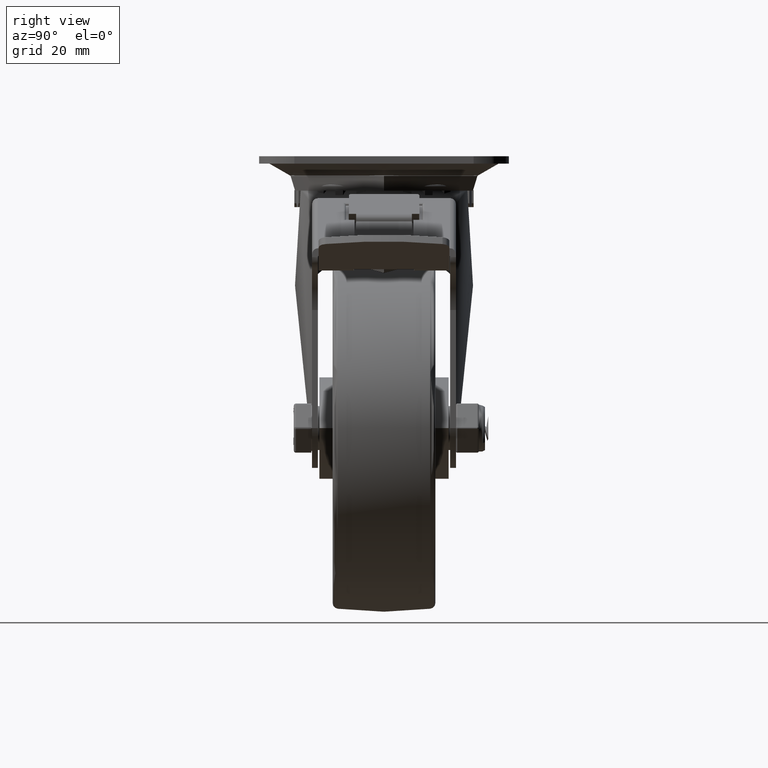
[diagram: clean part render]
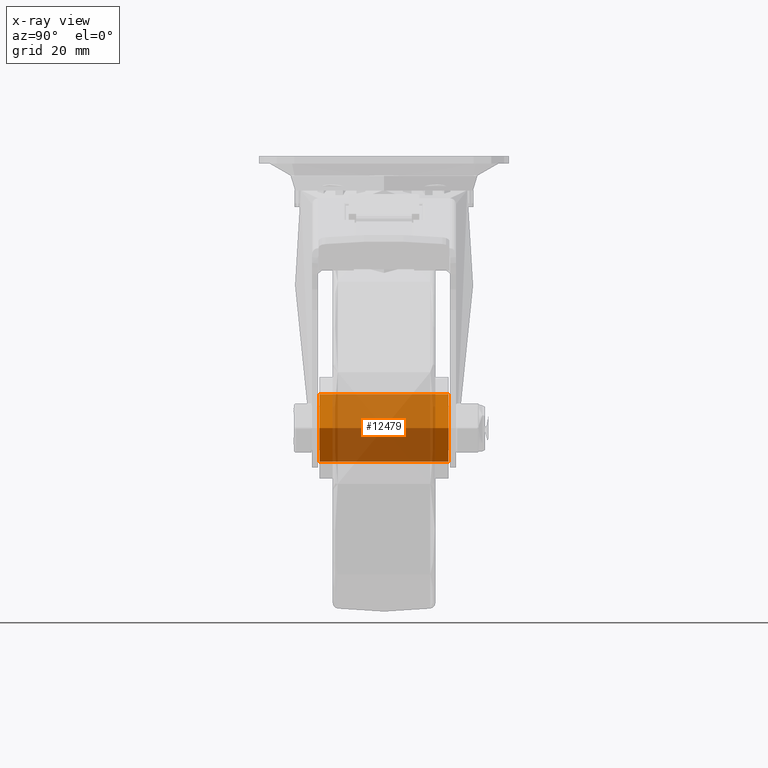
[diagram: x-ray — body ghosted, one internal face saturated and labeled with its STEP entity id]
A machine part, right view, then the same camera in x-ray: the body is ghosted and one INTERNAL B-rep face — a face not visible from any outside direction — is saturated and labeled: STEP entity #12479.
In plain terms, the highlighted cylindrical surface (bore or boss wall) has radius 11.5 mm, axis along (-0, 1, 0).
Its self-contained STEP definition (entity closure, byte-faithful):
#1388=FACE_OUTER_BOUND('',#2122,.T.);
#2122=EDGE_LOOP('',(#10370,#10371,#10372,#10373));
#3218=LINE('',#23047,#4371);
#4371=VECTOR('',#16266,11.5);
#5009=CIRCLE('',#13649,11.5);
#5010=CIRCLE('',#13650,11.5);
#5917=VERTEX_POINT('',#23044);
#5918=VERTEX_POINT('',#23046);
#7464=EDGE_CURVE('',#5917,#5917,#5009,.T.);
#7465=EDGE_CURVE('',#5917,#5918,#3218,.T.);
#7466=EDGE_CURVE('',#5918,#5918,#5010,.T.);
#10370=ORIENTED_EDGE('',*,*,#7464,.F.);
#10371=ORIENTED_EDGE('',*,*,#7465,.T.);
#10372=ORIENTED_EDGE('',*,*,#7466,.T.);
#10373=ORIENTED_EDGE('',*,*,#7465,.F.);
#11976=CYLINDRICAL_SURFACE('',#13648,11.5);
#12479=ADVANCED_FACE('',(#1388),#11976,.F.);
#13648=AXIS2_PLACEMENT_3D('',#23043,#16262,#16263);
#13649=AXIS2_PLACEMENT_3D('',#23045,#16264,#16265);
#13650=AXIS2_PLACEMENT_3D('',#23048,#16267,#16268);
#16262=DIRECTION('center_axis',(-3.26943875618435E-15,1.,0.));
#16263=DIRECTION('ref_axis',(-1.,-3.26943875618435E-15,0.));
#16264=DIRECTION('center_axis',(-3.26943875618435E-15,1.,0.));
#16265=DIRECTION('ref_axis',(-1.,-3.26943875618435E-15,0.));
#16266=DIRECTION('',(-3.26943875618435E-15,1.,0.));
#16267=DIRECTION('center_axis',(-3.26943875618435E-15,1.,0.));
#16268=DIRECTION('ref_axis',(-1.,-3.26943875618435E-15,0.));
#23043=CARTESIAN_POINT('Origin',(-5.67157216362141E-30,1.73472347597681E-15,
0.));
#23044=CARTESIAN_POINT('',(11.5000000000001,-22.,1.40834381901946E-15));
#23045=CARTESIAN_POINT('Origin',(7.19276526360557E-14,-22.,0.));
#23046=CARTESIAN_POINT('',(11.4999999999999,22.,1.40834381901945E-15));
#23047=CARTESIAN_POINT('',(11.5,3.93332691720968E-14,-1.40834381901946E-15));
#23048=CARTESIAN_POINT('Origin',(-7.19276526360557E-14,22.,0.));